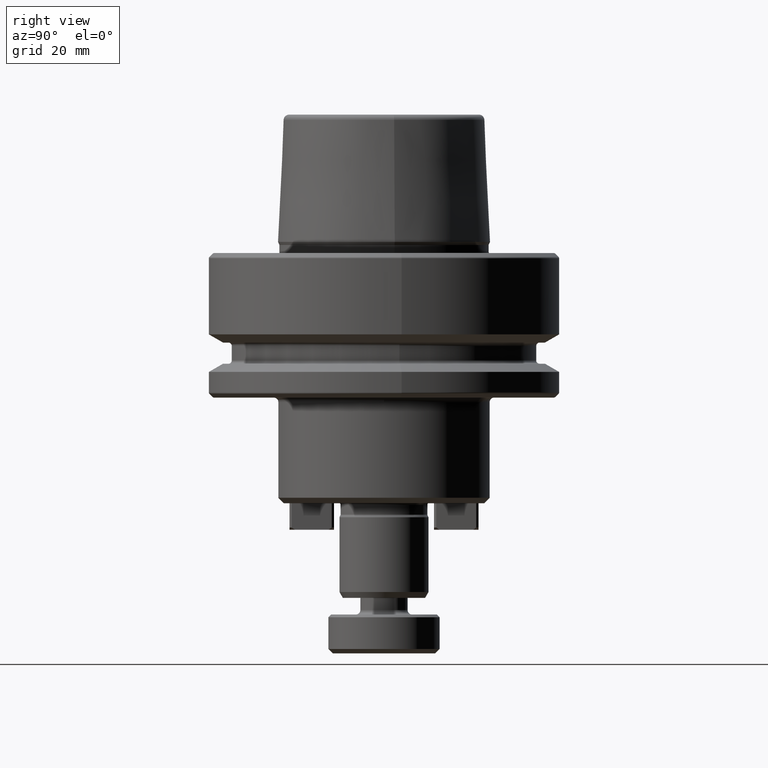
[diagram: clean part render]
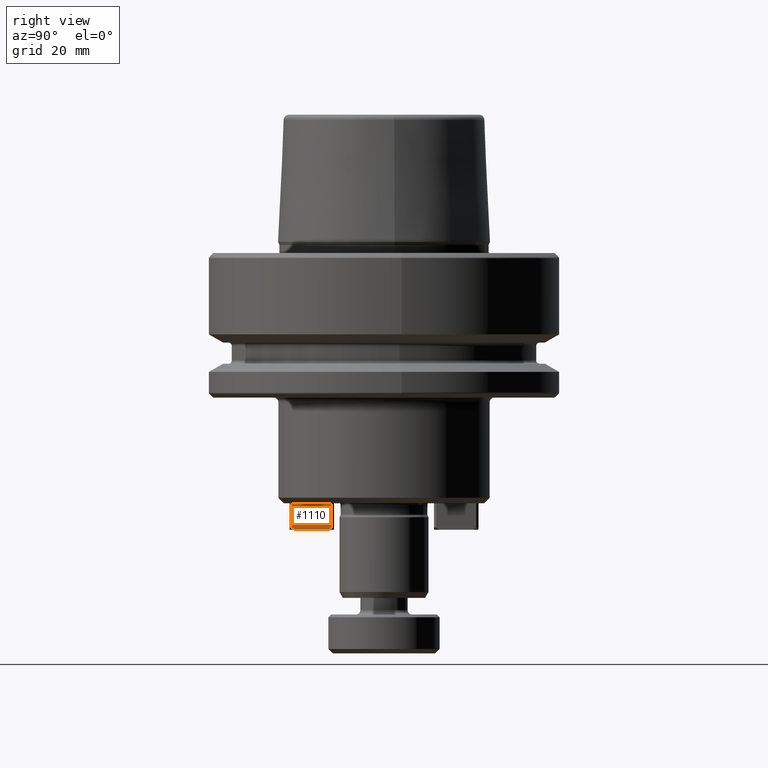
[diagram: same view with one face highlighted and labeled with its STEP entity id]
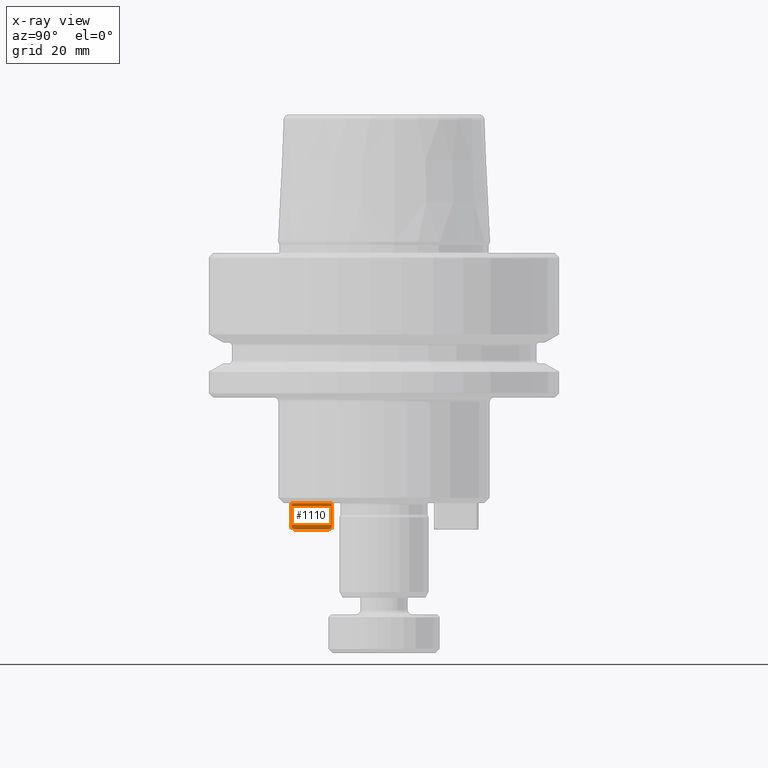
[diagram: x-ray of the same camera — body ghosted, the highlighted face saturated]
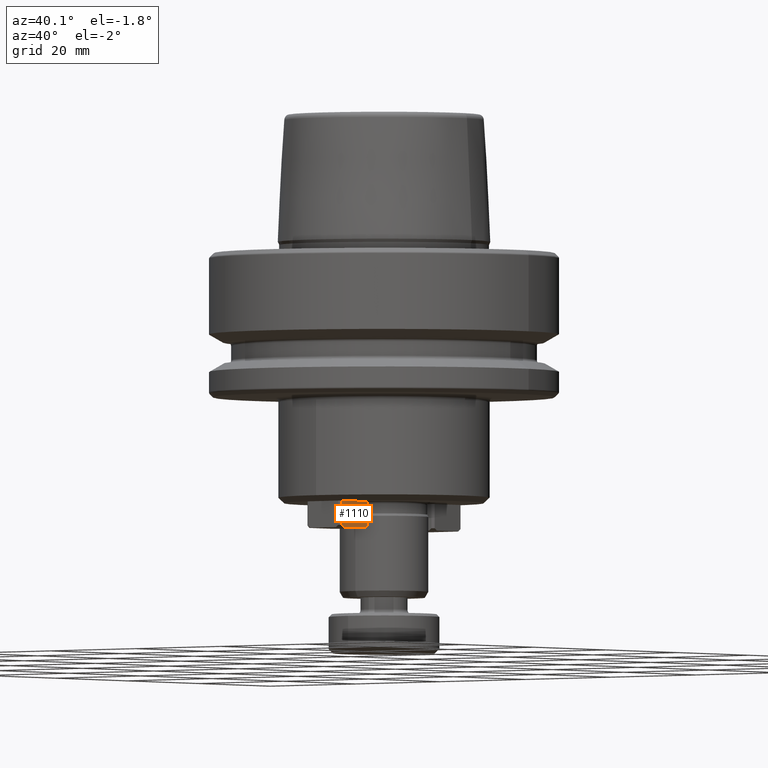
[diagram: same view with one face highlighted and labeled with its STEP entity id]
A machine part, right view. The second image highlights one B-rep face of the part: STEP entity #1110.
The next image is the same camera in x-ray: the body ghosted, the highlighted face saturated — about 0% of this face is hidden behind the body in this view.
A second angle (auxiliary view) of the same face is appended — the face is thin or edge-on in the first view.
In plain terms, the highlighted planar face has unit normal (-1, 0, 0).
Its self-contained STEP definition (entity closure, byte-faithful):
#27 = CARTESIAN_POINT ( 'NONE',  ( -19.61709746719498100, -19.21387599198314400, 18.23824922329686500 ) ) ;
#59 = VECTOR ( 'NONE', #2620, 1000.000000000000100 ) ;
#99 = LINE ( 'NONE', #1013, #1755 ) ;
#133 = CARTESIAN_POINT ( 'NONE',  ( -19.61709746719497700, -7.924332941949330700, 16.77999284593011000 ) ) ;
#169 = VERTEX_POINT ( 'NONE', #2525 ) ;
#179 = CARTESIAN_POINT ( 'NONE',  ( -19.61709746719497700, -12.01387599198313800, 13.48824922329686900 ) ) ;
#184 = DIRECTION ( 'NONE',  ( -0.0000000000000000000, -1.870988165364012400E-016, 1.000000000000000000 ) ) ;
#231 = CARTESIAN_POINT ( 'NONE',  ( -19.61709746719498100, -19.21387599198314400, 13.48824922329686900 ) ) ;
#367 = LINE ( 'NONE', #179, #2695 ) ;
#390 = VERTEX_POINT ( 'NONE', #2290 ) ;
#461 = ORIENTED_EDGE ( 'NONE', *, *, #871, .T. ) ;
#673 = EDGE_LOOP ( 'NONE', ( #1786, #461, #2046, #1368, #2367, #2039 ) ) ;
#685 = DIRECTION ( 'NONE',  ( -1.000000000000000000, 3.614007241618346800E-016, 6.761764778607766900E-032 ) ) ;
#871 = EDGE_CURVE ( 'NONE', #169, #2458, #1259, .T. ) ;
#912 = PLANE ( 'NONE',  #2743 ) ;
#963 = EDGE_CURVE ( 'NONE', #1799, #2350, #982, .T. ) ;
#982 = LINE ( 'NONE', #1314, #2767 ) ;
#1009 = VECTOR ( 'NONE', #184, 1000.000000000000000 ) ;
#1013 = CARTESIAN_POINT ( 'NONE',  ( -19.61709746719498100, -19.21387599198314400, 13.48824922329686900 ) ) ;
#1054 = CARTESIAN_POINT ( 'NONE',  ( -19.61709746719498100, -19.21387599198314400, 18.23824922329686500 ) ) ;
#1074 = DIRECTION ( 'NONE',  ( 2.950824556229416200E-016, 0.8164965809277247000, -0.5773502691896277300 ) ) ;
#1077 = LINE ( 'NONE', #1089, #1009 ) ;
#1089 = CARTESIAN_POINT ( 'NONE',  ( -19.61709746719498100, -19.21387599198314400, 13.48824922329686900 ) ) ;
#1110 = ADVANCED_FACE ( 'NONE', ( #2479 ), #912, .F. ) ;
#1257 = LINE ( 'NONE', #1054, #2375 ) ;
#1259 = LINE ( 'NONE', #133, #59 ) ;
#1314 = CARTESIAN_POINT ( 'NONE',  ( -19.61709746719497700, -14.63675237535032500, 10.65173407564668700 ) ) ;
#1368 = ORIENTED_EDGE ( 'NONE', *, *, #1522, .T. ) ;
#1522 = EDGE_CURVE ( 'NONE', #390, #2854, #1257, .T. ) ;
#1576 = EDGE_CURVE ( 'NONE', #2458, #390, #367, .T. ) ;
#1685 = CARTESIAN_POINT ( 'NONE',  ( -19.61709746719497700, -12.01387599198313800, 13.88824922329688000 ) ) ;
#1755 = VECTOR ( 'NONE', #2565, 1000.000000000000000 ) ;
#1786 = ORIENTED_EDGE ( 'NONE', *, *, #1972, .F. ) ;
#1799 = VERTEX_POINT ( 'NONE', #2502 ) ;
#1861 = CARTESIAN_POINT ( 'NONE',  ( -19.61709746719498100, -18.64819056703391100, 13.48824922329686900 ) ) ;
#1972 = EDGE_CURVE ( 'NONE', #169, #2350, #99, .T. ) ;
#2039 = ORIENTED_EDGE ( 'NONE', *, *, #963, .T. ) ;
#2046 = ORIENTED_EDGE ( 'NONE', *, *, #1576, .T. ) ;
#2251 = DIRECTION ( 'NONE',  ( -3.614007241618346800E-016, -1.000000000000000000, 0.0000000000000000000 ) ) ;
#2290 = CARTESIAN_POINT ( 'NONE',  ( -19.61709746719497700, -12.01387599198314000, 18.23824922329686500 ) ) ;
#2350 = VERTEX_POINT ( 'NONE', #1861 ) ;
#2367 = ORIENTED_EDGE ( 'NONE', *, *, #2668, .F. ) ;
#2375 = VECTOR ( 'NONE', #2852, 1000.000000000000000 ) ;
#2427 = DIRECTION ( 'NONE',  ( -0.0000000000000000000, -1.870988165364012400E-016, 1.000000000000000000 ) ) ;
#2458 = VERTEX_POINT ( 'NONE', #1685 ) ;
#2479 = FACE_OUTER_BOUND ( 'NONE', #673, .T. ) ;
#2502 = CARTESIAN_POINT ( 'NONE',  ( -19.61709746719498100, -19.21387599198314400, 13.88824922329686600 ) ) ;
#2525 = CARTESIAN_POINT ( 'NONE',  ( -19.61709746719497700, -12.57956141693239400, 13.48824922329686200 ) ) ;
#2565 = DIRECTION ( 'NONE',  ( -3.614007241618346800E-016, -1.000000000000000000, 0.0000000000000000000 ) ) ;
#2620 = DIRECTION ( 'NONE',  ( 2.950824556229419700E-016, 0.8164965809277250400, 0.5773502691896271700 ) ) ;
#2668 = EDGE_CURVE ( 'NONE', #1799, #2854, #1077, .T. ) ;
#2695 = VECTOR ( 'NONE', #2427, 1000.000000000000000 ) ;
#2743 = AXIS2_PLACEMENT_3D ( 'NONE', #231, #685, #2251 ) ;
#2767 = VECTOR ( 'NONE', #1074, 1000.000000000000200 ) ;
#2852 = DIRECTION ( 'NONE',  ( -3.614007241618346800E-016, -1.000000000000000000, 0.0000000000000000000 ) ) ;
#2854 = VERTEX_POINT ( 'NONE', #27 ) ;